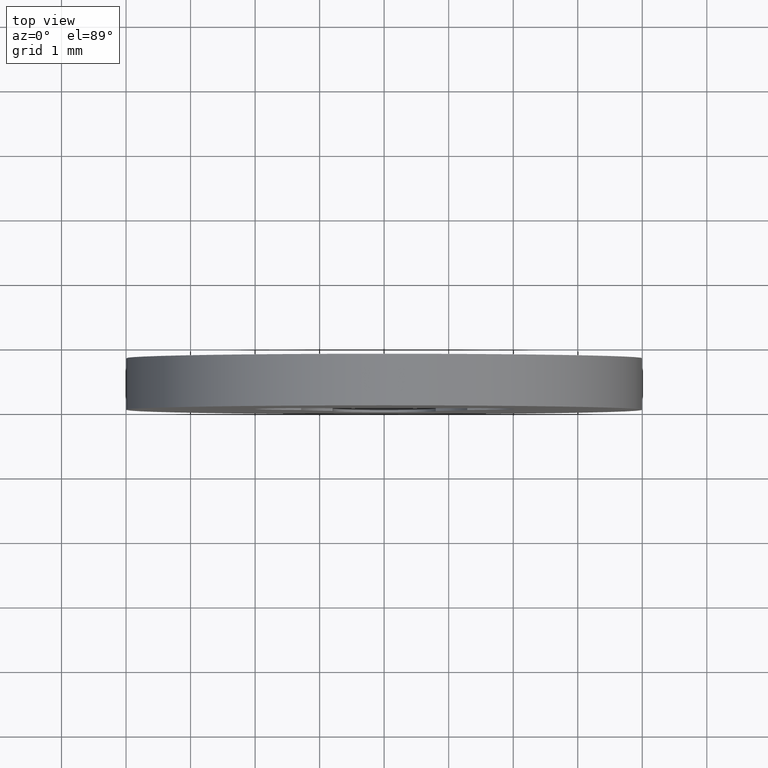
[diagram: clean part render]
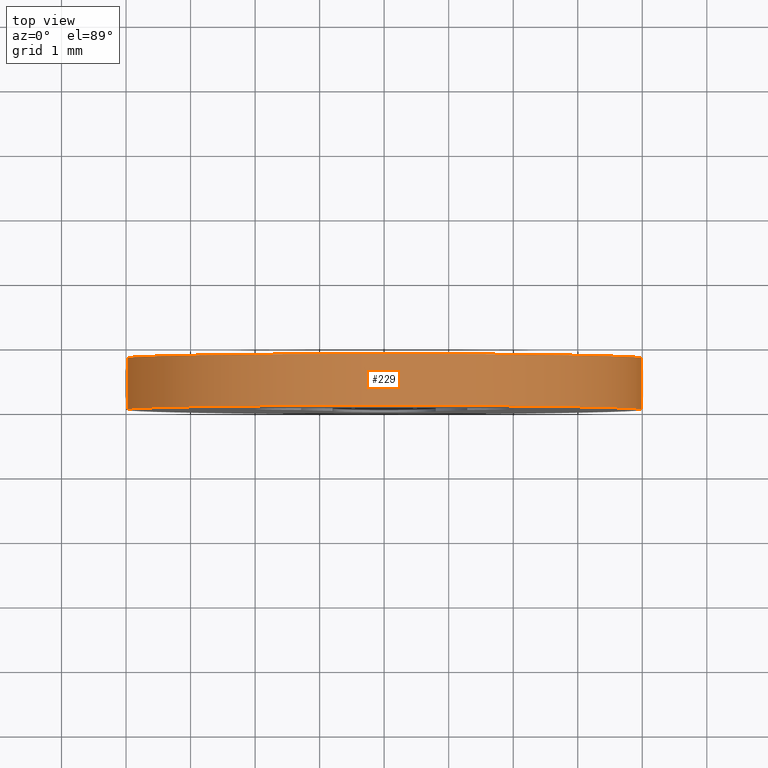
[diagram: same view with one face highlighted and labeled with its STEP entity id]
A machine part, top view. The second image highlights one B-rep face of the part: STEP entity #229.
In plain terms, the highlighted face is a freeform B-spline surface patch.
Its self-contained STEP definition (entity closure, byte-faithful):
#66=CARTESIAN_POINT('',(-3.972038406107942,1.940217E-014,0.472134409249084));
#67=VERTEX_POINT('',#66);
#85=CARTESIAN_POINT('',(-3.972038402399532,0.800000000000023,0.472134440447886));
#86=VERTEX_POINT('',#85);
#87=CARTESIAN_POINT('',(-3.972038402399532,0.800000000000023,0.472134440447886));
#88=CARTESIAN_POINT('',(-3.972038406107942,1.940217E-014,0.472134409249084));
#89=QUASI_UNIFORM_CURVE('',1,(#87,#88),.UNSPECIFIED.,.F.,.U.);
#90=EDGE_CURVE('',#86,#67,#89,.T.);
#109=CARTESIAN_POINT('',(3.992539279994037,0.800000000000023,-0.244192747031311));
#110=VERTEX_POINT('',#109);
#124=CARTESIAN_POINT('',(3.992539281071392,1.277450E-014,-0.244192729416499));
#125=VERTEX_POINT('',#124);
#126=CARTESIAN_POINT('',(3.992539279994037,0.800000000000023,-0.244192747031311));
#127=CARTESIAN_POINT('',(3.992539281071392,1.277450E-014,-0.244192729416499));
#128=QUASI_UNIFORM_CURVE('',1,(#126,#127),.UNSPECIFIED.,.F.,.U.);
#129=EDGE_CURVE('',#110,#125,#128,.T.);
#147=CARTESIAN_POINT('',(3.992539193687467,0.820000000000024,-0.244194158139428));
#148=CARTESIAN_POINT('',(4.236733351826894,0.820000000000024,3.748345035548039));
#149=CARTESIAN_POINT('',(0.244194158139428,0.820000000000024,3.992539193687467));
#150=CARTESIAN_POINT('',(-3.526173963358004,0.820000000000024,4.223144786930110));
#151=CARTESIAN_POINT('',(-3.972038105454666,0.820000000000024,0.472136938627034));
#152=CARTESIAN_POINT('',(3.992539193687467,-0.020500000000001,-0.244194158139428));
#153=CARTESIAN_POINT('',(4.236733351826894,-0.020500000000001,3.748345035548039));
#154=CARTESIAN_POINT('',(0.244194158139428,-0.020500000000001,3.992539193687467));
#155=CARTESIAN_POINT('',(-3.526173963358004,-0.020500000000001,4.223144786930110));
#156=CARTESIAN_POINT('',(-3.972038105454666,-0.020500000000001,0.472136938627034));
#164=(BOUNDED_SURFACE()B_SPLINE_SURFACE(2,1,((#147,#152),(#148,#153),(#149,#154),(#150,#155),(#151,#156)),.UNSPECIFIED.,.F.,.F.,.U.)B_SPLINE_SURFACE_WITH_KNOTS((3,2,3),(2,2),(0.0,6.627416997969518,12.989737316020260),(0.0,1.0),.UNSPECIFIED.)GEOMETRIC_REPRESENTATION_ITEM()RATIONAL_B_SPLINE_SURFACE(((1.0,1.0),(0.707106781186548,0.707106781186548),(1.0,1.0),(0.718822509939086,0.718822509939086),(0.977505800795127,0.977505800795127)))REPRESENTATION_ITEM('')SURFACE());
#165=CARTESIAN_POINT('',(0.0,0.0,4.0));
#166=VERTEX_POINT('',#165);
#167=CARTESIAN_POINT('',(0.0,0.0,4.0));
#168=CARTESIAN_POINT('',(-3.552700382076046,0.0,4.0));
#169=CARTESIAN_POINT('',(-3.972038406107942,1.940217E-014,0.472134409249084));
#177=(BOUNDED_CURVE()B_SPLINE_CURVE(2,(#167,#168,#169),.UNSPECIFIED.,.F.,.U.)B_SPLINE_CURVE_WITH_KNOTS((3,3),(0.0,0.229562581136241),.UNSPECIFIED.)CURVE()GEOMETRIC_REPRESENTATION_ITEM()RATIONAL_B_SPLINE_CURVE((1.0,0.731050706767529,0.956026965128767))REPRESENTATION_ITEM(''));
#178=EDGE_CURVE('',#166,#67,#177,.T.);
#179=ORIENTED_EDGE('',*,*,#178,.F.);
#180=CARTESIAN_POINT('',(3.992539281071392,1.277450E-014,-0.244192729416499));
#181=CARTESIAN_POINT('',(4.000000000000001,0.0,-0.122210336829911));
#182=CARTESIAN_POINT('',(4.0,0.0,0.0));
#183=CARTESIAN_POINT('',(4.000000000000000,0.0,4.000000000000000));
#184=CARTESIAN_POINT('',(0.0,0.0,4.0));
#192=(BOUNDED_CURVE()B_SPLINE_CURVE(2,(#180,#181,#182,#183,#184),.UNSPECIFIED.,.F.,.U.)B_SPLINE_CURVE_WITH_KNOTS((3,2,3),(0.739333023987528,0.750000000000000,1.0),.UNSPECIFIED.)CURVE()GEOMETRIC_REPRESENTATION_ITEM()RATIONAL_B_SPLINE_CURVE((0.976072174005725,0.987502860242804,1.0,0.707106781186548,1.0))REPRESENTATION_ITEM(''));
#193=EDGE_CURVE('',#125,#166,#192,.T.);
#194=ORIENTED_EDGE('',*,*,#193,.F.);
#195=ORIENTED_EDGE('',*,*,#129,.F.);
#196=CARTESIAN_POINT('',(0.0,0.800000000000023,4.0));
#197=VERTEX_POINT('',#196);
#198=CARTESIAN_POINT('',(3.992539279994037,0.800000000000023,-0.244192747031311));
#199=CARTESIAN_POINT('',(4.0,0.800000000000023,-0.122210345662012));
#200=CARTESIAN_POINT('',(4.0,0.800000000000023,0.0));
#201=CARTESIAN_POINT('',(4.000000000000000,0.800000000000023,4.000000000000000));
#202=CARTESIAN_POINT('',(0.0,0.800000000000023,4.0));
#210=(BOUNDED_CURVE()B_SPLINE_CURVE(2,(#198,#199,#200,#201,#202),.UNSPECIFIED.,.F.,.U.)B_SPLINE_CURVE_WITH_KNOTS((3,2,3),(0.739333023226263,0.750000000000000,1.0),.UNSPECIFIED.)CURVE()GEOMETRIC_REPRESENTATION_ITEM()RATIONAL_B_SPLINE_CURVE((0.976072172374189,0.987502859350927,1.0,0.707106781186548,1.0))REPRESENTATION_ITEM(''));
#211=EDGE_CURVE('',#110,#197,#210,.T.);
#212=ORIENTED_EDGE('',*,*,#211,.T.);
#213=CARTESIAN_POINT('',(0.0,0.800000000000023,4.0));
#214=CARTESIAN_POINT('',(-3.552700353974541,0.800000000000023,4.0));
#215=CARTESIAN_POINT('',(-3.972038402399532,0.800000000000023,0.472134440447886));
#223=(BOUNDED_CURVE()B_SPLINE_CURVE(2,(#213,#214,#215),.UNSPECIFIED.,.F.,.U.)B_SPLINE_CURVE_WITH_KNOTS((3,3),(0.0,0.229562579808786),.UNSPECIFIED.)CURVE()GEOMETRIC_REPRESENTATION_ITEM()RATIONAL_B_SPLINE_CURVE((1.0,0.731050708322738,0.956026962526900))REPRESENTATION_ITEM(''));
#224=EDGE_CURVE('',#197,#86,#223,.T.);
#225=ORIENTED_EDGE('',*,*,#224,.T.);
#226=ORIENTED_EDGE('',*,*,#90,.T.);
#227=EDGE_LOOP('',(#179,#194,#195,#212,#225,#226));
#228=FACE_OUTER_BOUND('',#227,.T.);
#229=ADVANCED_FACE('',(#228),#164,.T.);